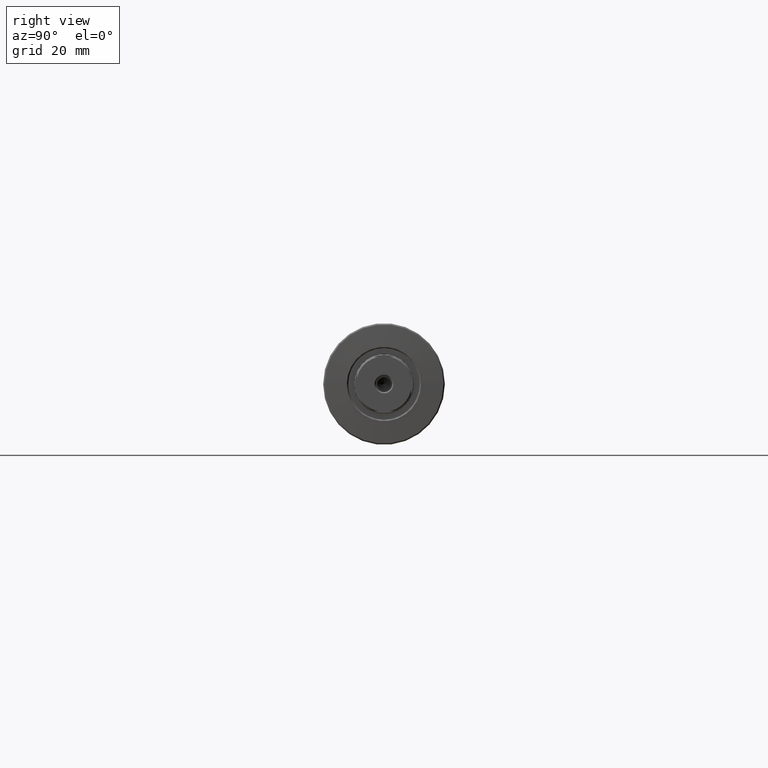
[diagram: clean part render]
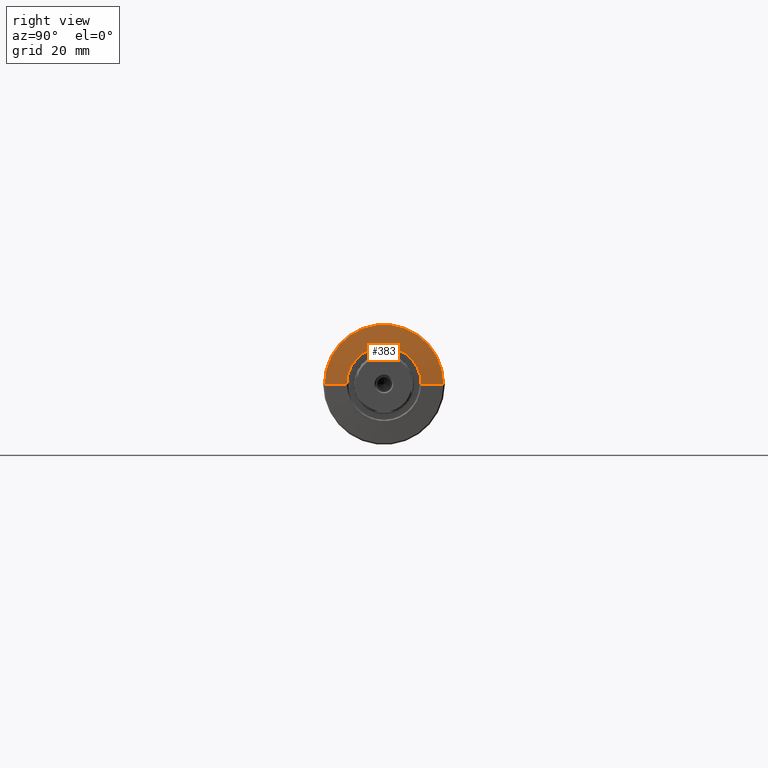
[diagram: same view with one face highlighted and labeled with its STEP entity id]
A machine part, right view. The second image highlights one B-rep face of the part: STEP entity #383.
In plain terms, the highlighted conical surface has half-angle 87.138 deg.
Its self-contained STEP definition (entity closure, byte-faithful):
#205 = EDGE_CURVE ( 'NONE', #997, #970, #1558, .T. ) ;
#242 = AXIS2_PLACEMENT_3D ( 'NONE', #1012, #272, #1797 ) ;
#272 = DIRECTION ( 'NONE',  ( -1.000000000000000000, -3.039592211588226037E-15, 0.000000000000000000 ) ) ;
#355 = CARTESIAN_POINT ( 'NONE',  ( -1.100000000000665556, -21.99999999999997158, 0.000000000000000000 ) ) ;
#370 = DIRECTION ( 'NONE',  ( -0.04993761694392855749, 0.9987523388778428712, 1.223118854947682994E-16 ) ) ;
#383 = ADVANCED_FACE ( 'NONE', ( #666 ), #2255, .T. ) ;
#440 = VECTOR ( 'NONE', #370, 1000.000000000000000 ) ;
#666 = FACE_OUTER_BOUND ( 'NONE', #915, .T. ) ;
#761 = EDGE_CURVE ( 'NONE', #2005, #970, #2220, .T. ) ;
#818 = CARTESIAN_POINT ( 'NONE',  ( -1.100000000000732392, 8.869536993631697946E-14, 0.000000000000000000 ) ) ;
#862 = EDGE_CURVE ( 'NONE', #997, #1340, #1565, .T. ) ;
#915 = EDGE_LOOP ( 'NONE', ( #1502, #2172, #1301, #1671 ) ) ;
#938 = EDGE_CURVE ( 'NONE', #1340, #2005, #2094, .T. ) ;
#970 = VERTEX_POINT ( 'NONE', #355 ) ;
#979 = DIRECTION ( 'NONE',  ( -0.04993761694392248596, -0.9987523388778432043, 0.000000000000000000 ) ) ;
#997 = VERTEX_POINT ( 'NONE', #1738 ) ;
#1004 = CARTESIAN_POINT ( 'NONE',  ( -1.100000000000732392, 8.869536993631697946E-14, 0.000000000000000000 ) ) ;
#1012 = CARTESIAN_POINT ( 'NONE',  ( -0.6874688084723999948, 8.994929653312370924E-14, 0.000000000000000000 ) ) ;
#1145 = AXIS2_PLACEMENT_3D ( 'NONE', #818, #2124, #1396 ) ;
#1301 = ORIENTED_EDGE ( 'NONE', *, *, #761, .T. ) ;
#1336 = CARTESIAN_POINT ( 'NONE',  ( -1.100000000000799227, 22.00000000000015277, 2.694222958124184698E-15 ) ) ;
#1340 = VERTEX_POINT ( 'NONE', #1535 ) ;
#1355 = VECTOR ( 'NONE', #979, 1000.000000000000114 ) ;
#1396 = DIRECTION ( 'NONE',  ( -3.035766082959404132E-15, 1.000000000000000000, 0.000000000000000000 ) ) ;
#1502 = ORIENTED_EDGE ( 'NONE', *, *, #862, .T. ) ;
#1535 = CARTESIAN_POINT ( 'NONE',  ( -0.6874688084724417392, 13.74937616943901908, 2.189017954870906259E-15 ) ) ;
#1558 = LINE ( 'NONE', #2128, #1355 ) ;
#1565 = CIRCLE ( 'NONE', #242, 13.74937616943892849 ) ;
#1585 = DIRECTION ( 'NONE',  ( -1.000000000000000000, -3.039592211588219332E-15, 0.000000000000000000 ) ) ;
#1671 = ORIENTED_EDGE ( 'NONE', *, *, #205, .F. ) ;
#1738 = CARTESIAN_POINT ( 'NONE',  ( -0.6874688084723582504, -13.74937616943883789, 0.000000000000000000 ) ) ;
#1797 = DIRECTION ( 'NONE',  ( -3.035903820383676297E-15, 1.000000000000000000, 0.000000000000000000 ) ) ;
#1927 = DIRECTION ( 'NONE',  ( 3.035766082959404132E-15, -1.000000000000000000, 0.000000000000000000 ) ) ;
#2005 = VERTEX_POINT ( 'NONE', #2013 ) ;
#2013 = CARTESIAN_POINT ( 'NONE',  ( -1.100000000000799227, 22.00000000000015277, 2.724839128102870063E-15 ) ) ;
#2094 = LINE ( 'NONE', #1336, #440 ) ;
#2124 = DIRECTION ( 'NONE',  ( 1.000000000000000000, 3.039592211588219332E-15, -0.000000000000000000 ) ) ;
#2128 = CARTESIAN_POINT ( 'NONE',  ( -1.100000000000665556, -21.99999999999997158, 0.000000000000000000 ) ) ;
#2172 = ORIENTED_EDGE ( 'NONE', *, *, #938, .T. ) ;
#2220 = CIRCLE ( 'NONE', #1145, 22.00000000000006040 ) ;
#2255 = CONICAL_SURFACE ( 'NONE', #2260, 22.00000000000006040, 1.520837931072920535 ) ;
#2260 = AXIS2_PLACEMENT_3D ( 'NONE', #1004, #1585, #1927 ) ;